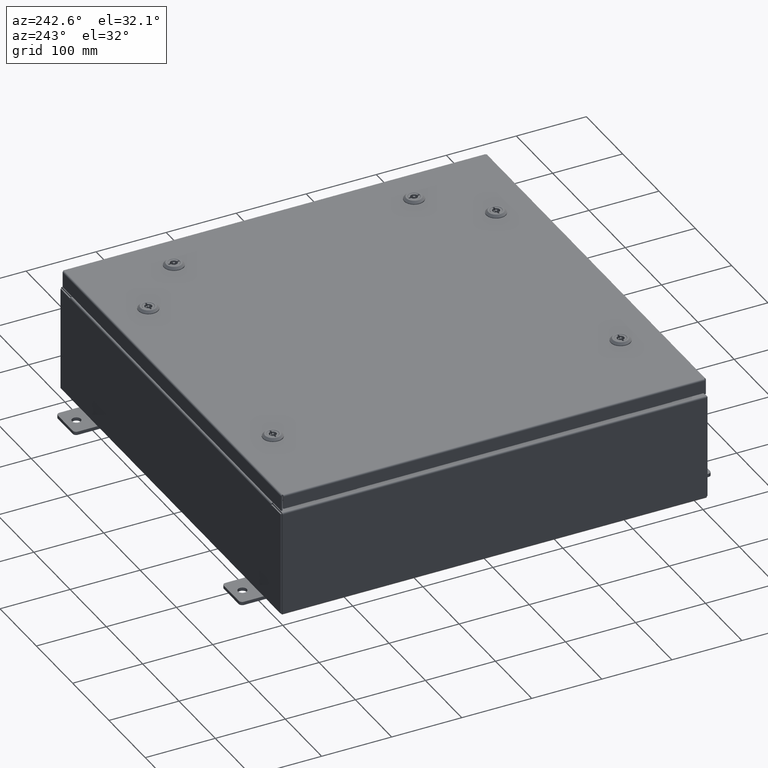
[diagram: clean part render]
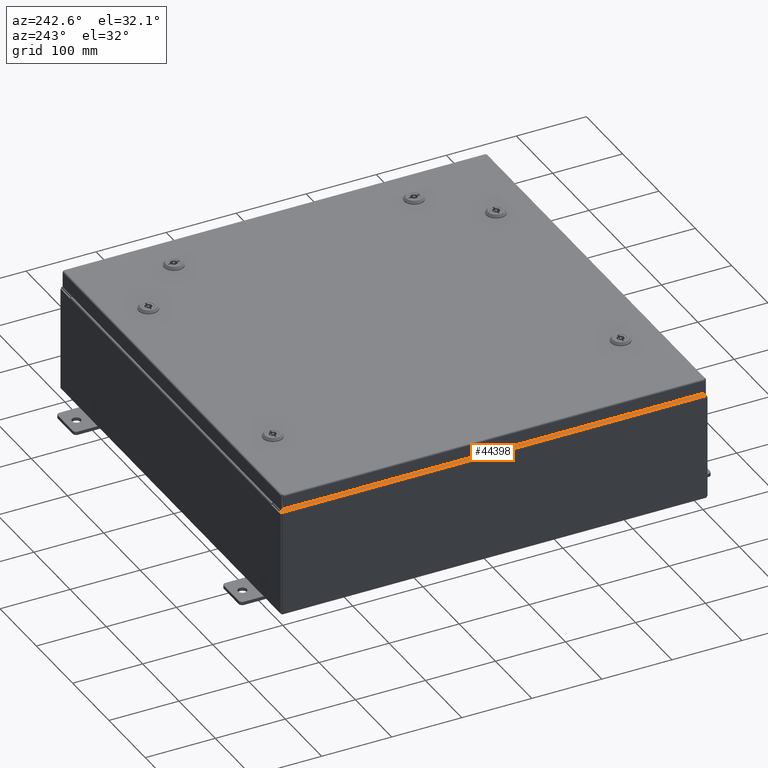
[diagram: same view with one face highlighted and labeled with its STEP entity id]
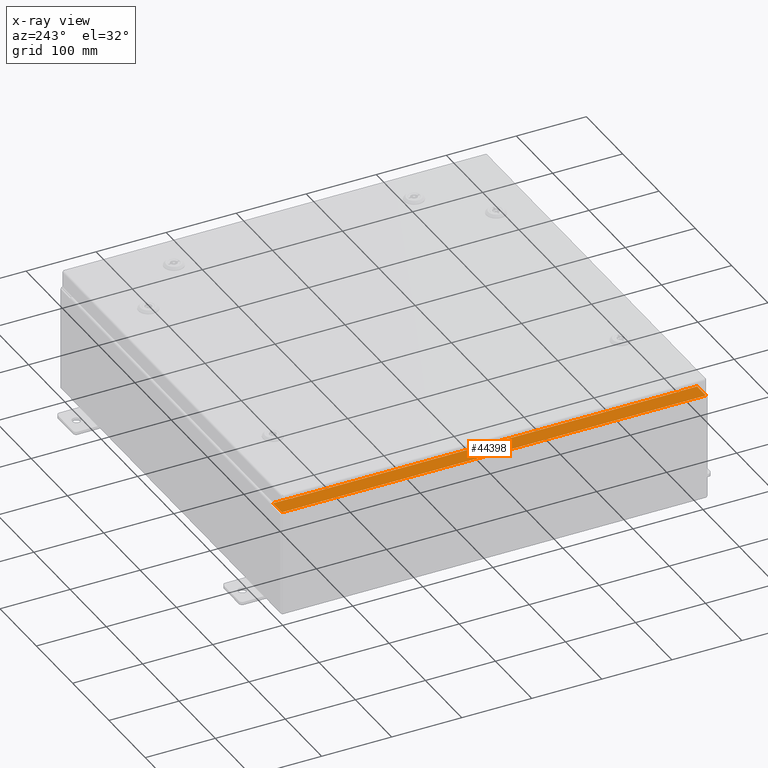
[diagram: x-ray of the same camera — body ghosted, the highlighted face saturated]
A machine part, auxiliary view. The second image highlights one B-rep face of the part: STEP entity #44398.
The next image is the same camera in x-ray: the body ghosted, the highlighted face saturated — about 0% of this face is hidden behind the body in this view.
In plain terms, the highlighted planar face has unit normal (0, 0, -1).
Its self-contained STEP definition (entity closure, byte-faithful):
#294 = VECTOR ( 'NONE', #16693, 39.37007874015748100 ) ;
#655 = CARTESIAN_POINT ( 'NONE',  ( -11.91230000000002500, 11.92529999999999800, 5.925299999999999100 ) ) ;
#678 = VERTEX_POINT ( 'NONE', #49203 ) ;
#1155 = VECTOR ( 'NONE', #18590, 39.37007874015748100 ) ;
#2013 = VECTOR ( 'NONE', #42949, 39.37007874015748100 ) ;
#3148 = ORIENTED_EDGE ( 'NONE', *, *, #23807, .F. ) ;
#4619 = CARTESIAN_POINT ( 'NONE',  ( -10.94970000000002300, -3.416898303340454000E-030, 5.925300000000007100 ) ) ;
#4754 = EDGE_CURVE ( 'NONE', #34256, #27481, #26583, .T. ) ;
#4834 = DIRECTION ( 'NONE',  ( -3.120540565805877600E-031, 1.000000000000000000, -2.446654259406031200E-045 ) ) ;
#5047 = ORIENTED_EDGE ( 'NONE', *, *, #27737, .T. ) ;
#5133 = EDGE_LOOP ( 'NONE', ( #22760, #5047, #47846, #42947, #28122, #53013, #22059, #3148, #8123, #5339, #15529, #35151 ) ) ;
#5310 = CARTESIAN_POINT ( 'NONE',  ( -10.94970000000002300, 11.92529999999999800, 5.925300000000007100 ) ) ;
#5339 = ORIENTED_EDGE ( 'NONE', *, *, #36952, .F. ) ;
#6219 = EDGE_CURVE ( 'NONE', #6316, #14783, #63271, .T. ) ;
#6316 = VERTEX_POINT ( 'NONE', #33972 ) ;
#7038 = VERTEX_POINT ( 'NONE', #13576 ) ;
#7768 = LINE ( 'NONE', #62870, #17765 ) ;
#7798 = VECTOR ( 'NONE', #4834, 39.37007874015748100 ) ;
#8123 = ORIENTED_EDGE ( 'NONE', *, *, #56595, .F. ) ;
#9049 = VECTOR ( 'NONE', #24270, 39.37007874015748100 ) ;
#10719 = FACE_OUTER_BOUND ( 'NONE', #5133, .T. ) ;
#10733 = CARTESIAN_POINT ( 'NONE',  ( -11.00005000000002100, 10.86242499999999800, 5.925300000000007100 ) ) ;
#11390 = CARTESIAN_POINT ( 'NONE',  ( -10.96270000000002300, 10.84374999999999800, 5.925300000000007100 ) ) ;
#12443 = LINE ( 'NONE', #4619, #7798 ) ;
#13285 = VERTEX_POINT ( 'NONE', #44675 ) ;
#13576 = CARTESIAN_POINT ( 'NONE',  ( -11.00005000000002100, 10.84374999999999800, 5.925300000000007100 ) ) ;
#13819 = EDGE_CURVE ( 'NONE', #32855, #29947, #58127, .T. ) ;
#14783 = VERTEX_POINT ( 'NONE', #21632 ) ;
#15323 = CARTESIAN_POINT ( 'NONE',  ( -11.00005000000002100, -10.86242500000000000, 5.925300000000007100 ) ) ;
#15529 = ORIENTED_EDGE ( 'NONE', *, *, #37034, .F. ) ;
#15680 = DIRECTION ( 'NONE',  ( 1.000000000000000000, 0.0000000000000000000, 0.0000000000000000000 ) ) ;
#15740 = CARTESIAN_POINT ( 'NONE',  ( -4.671802251948585600E-014, 0.0000000000000000000, 5.925300000000093300 ) ) ;
#16693 = DIRECTION ( 'NONE',  ( 1.000000000000000000, 0.0000000000000000000, 7.840482146637899600E-015 ) ) ;
#17765 = VECTOR ( 'NONE', #33499, 39.37007874015748100 ) ;
#17975 = LINE ( 'NONE', #46039, #294 ) ;
#18590 = DIRECTION ( 'NONE',  ( -1.000000000000000000, -4.340572780400098900E-014, 0.0000000000000000000 ) ) ;
#20281 = DIRECTION ( 'NONE',  ( 1.000000000000000000, 0.0000000000000000000, 0.0000000000000000000 ) ) ;
#21632 = CARTESIAN_POINT ( 'NONE',  ( -11.00005000000002100, 10.88109999999999800, 5.925300000000007100 ) ) ;
#22059 = ORIENTED_EDGE ( 'NONE', *, *, #13819, .F. ) ;
#22220 = EDGE_CURVE ( 'NONE', #14783, #7038, #57724, .T. ) ;
#22680 = VECTOR ( 'NONE', #48049, 39.37007874015748100 ) ;
#22760 = ORIENTED_EDGE ( 'NONE', *, *, #6219, .F. ) ;
#22987 = CARTESIAN_POINT ( 'NONE',  ( -11.00005000000002100, -10.84375000000000200, 5.925300000000007100 ) ) ;
#23535 = CARTESIAN_POINT ( 'NONE',  ( -4.671802251948585600E-014, 11.92529999999999800, 5.925300000000093300 ) ) ;
#23807 = EDGE_CURVE ( 'NONE', #45210, #32855, #56867, .T. ) ;
#24270 = DIRECTION ( 'NONE',  ( 1.000000000000000000, 0.0000000000000000000, 0.0000000000000000000 ) ) ;
#25604 = DIRECTION ( 'NONE',  ( -1.000000000000000000, 0.0000000000000000000, -7.840482146637899600E-015 ) ) ;
#26583 = LINE ( 'NONE', #23535, #2013 ) ;
#27481 = VERTEX_POINT ( 'NONE', #655 ) ;
#27737 = EDGE_CURVE ( 'NONE', #6316, #34256, #61934, .T. ) ;
#28122 = ORIENTED_EDGE ( 'NONE', *, *, #59950, .T. ) ;
#28368 = CARTESIAN_POINT ( 'NONE',  ( -10.96270000000002300, -10.84375000000000200, 5.925300000000007100 ) ) ;
#29947 = VERTEX_POINT ( 'NONE', #42761 ) ;
#30825 = AXIS2_PLACEMENT_3D ( 'NONE', #15740, #35211, #25604 ) ;
#31780 = VERTEX_POINT ( 'NONE', #11390 ) ;
#32855 = VERTEX_POINT ( 'NONE', #43069 ) ;
#32872 = DIRECTION ( 'NONE',  ( -0.0000000000000000000, -1.000000000000000000, -0.0000000000000000000 ) ) ;
#33499 = DIRECTION ( 'NONE',  ( 1.000000000000000000, 0.0000000000000000000, 0.0000000000000000000 ) ) ;
#33972 = CARTESIAN_POINT ( 'NONE',  ( -10.94970000000002300, 10.88110000000000000, 5.925300000000007100 ) ) ;
#34256 = VERTEX_POINT ( 'NONE', #5310 ) ;
#35151 = ORIENTED_EDGE ( 'NONE', *, *, #22220, .F. ) ;
#35211 = DIRECTION ( 'NONE',  ( 7.840482146637899600E-015, 0.0000000000000000000, -1.000000000000000000 ) ) ;
#36952 = EDGE_CURVE ( 'NONE', #31780, #678, #59916, .T. ) ;
#37034 = EDGE_CURVE ( 'NONE', #7038, #31780, #7768, .T. ) ;
#37561 = DIRECTION ( 'NONE',  ( 9.163200904511462000E-017, 1.000000000000000000, 7.184391309787836500E-031 ) ) ;
#40345 = EDGE_CURVE ( 'NONE', #13285, #29947, #12443, .T. ) ;
#41686 = CARTESIAN_POINT ( 'NONE',  ( -10.94970000000002300, -3.416898303340454000E-030, 5.925300000000007100 ) ) ;
#42059 = AXIS2_PLACEMENT_3D ( 'NONE', #15323, #49608, #20281 ) ;
#42206 = EDGE_CURVE ( 'NONE', #51994, #27481, #62931, .T. ) ;
#42761 = CARTESIAN_POINT ( 'NONE',  ( -10.94970000000002300, -10.88110000000000200, 5.925300000000007100 ) ) ;
#42947 = ORIENTED_EDGE ( 'NONE', *, *, #42206, .F. ) ;
#42949 = DIRECTION ( 'NONE',  ( -1.000000000000000000, -5.131708078419879300E-032, -7.840482146637899600E-015 ) ) ;
#43069 = CARTESIAN_POINT ( 'NONE',  ( -11.00005000000002100, -10.88110000000000000, 5.925300000000007100 ) ) ;
#44398 = ADVANCED_FACE ( 'NONE', ( #10719 ), #54928, .F. ) ;
#44675 = CARTESIAN_POINT ( 'NONE',  ( -10.94970000000002300, -11.92530000000000000, 5.925300000000007100 ) ) ;
#45034 = DIRECTION ( 'NONE',  ( -7.840482146637899600E-015, -0.0000000000000000000, 1.000000000000000000 ) ) ;
#45210 = VERTEX_POINT ( 'NONE', #22987 ) ;
#46039 = CARTESIAN_POINT ( 'NONE',  ( -4.671802251948585600E-014, -11.92530000000000000, 5.925300000000093300 ) ) ;
#46978 = AXIS2_PLACEMENT_3D ( 'NONE', #10733, #45034, #15680 ) ;
#47452 = CARTESIAN_POINT ( 'NONE',  ( -10.96270000000002300, 10.84375000000000200, 5.925300000000007100 ) ) ;
#47846 = ORIENTED_EDGE ( 'NONE', *, *, #4754, .T. ) ;
#48049 = DIRECTION ( 'NONE',  ( -1.000000000000000000, 0.0000000000000000000, 0.0000000000000000000 ) ) ;
#48903 = VECTOR ( 'NONE', #56506, 39.37007874015748100 ) ;
#49203 = CARTESIAN_POINT ( 'NONE',  ( -10.96270000000002300, -10.84375000000000200, 5.925300000000007100 ) ) ;
#49608 = DIRECTION ( 'NONE',  ( -7.840482146637899600E-015, -0.0000000000000000000, 1.000000000000000000 ) ) ;
#51994 = VERTEX_POINT ( 'NONE', #56610 ) ;
#52853 = CARTESIAN_POINT ( 'NONE',  ( -10.94970000000002300, 10.88110000000000000, 5.925300000000007100 ) ) ;
#53013 = ORIENTED_EDGE ( 'NONE', *, *, #40345, .T. ) ;
#53571 = CARTESIAN_POINT ( 'NONE',  ( -11.00005000000002100, -10.88110000000000000, 5.925300000000007100 ) ) ;
#54928 = PLANE ( 'NONE',  #30825 ) ;
#56506 = DIRECTION ( 'NONE',  ( -3.120540565805877600E-031, 1.000000000000000000, -2.446654259406031200E-045 ) ) ;
#56595 = EDGE_CURVE ( 'NONE', #678, #45210, #61713, .T. ) ;
#56610 = CARTESIAN_POINT ( 'NONE',  ( -11.91230000000002500, -11.92530000000000000, 5.925300000000000000 ) ) ;
#56867 = CIRCLE ( 'NONE', #42059, 0.01867499999999949400 ) ;
#57724 = CIRCLE ( 'NONE', #46978, 0.01867499999999949400 ) ;
#58127 = LINE ( 'NONE', #53571, #9049 ) ;
#58382 = VECTOR ( 'NONE', #32872, 39.37007874015748100 ) ;
#59835 = VECTOR ( 'NONE', #37561, 39.37007874015748100 ) ;
#59916 = LINE ( 'NONE', #47452, #58382 ) ;
#59950 = EDGE_CURVE ( 'NONE', #51994, #13285, #17975, .T. ) ;
#61713 = LINE ( 'NONE', #28368, #22680 ) ;
#61934 = LINE ( 'NONE', #41686, #48903 ) ;
#62012 = CARTESIAN_POINT ( 'NONE',  ( -11.91230000000002300, 11.92529999999999800, 5.925300000000000000 ) ) ;
#62870 = CARTESIAN_POINT ( 'NONE',  ( -11.00005000000002100, 10.84374999999999800, 5.925300000000007100 ) ) ;
#62931 = LINE ( 'NONE', #62012, #59835 ) ;
#63271 = LINE ( 'NONE', #52853, #1155 ) ;